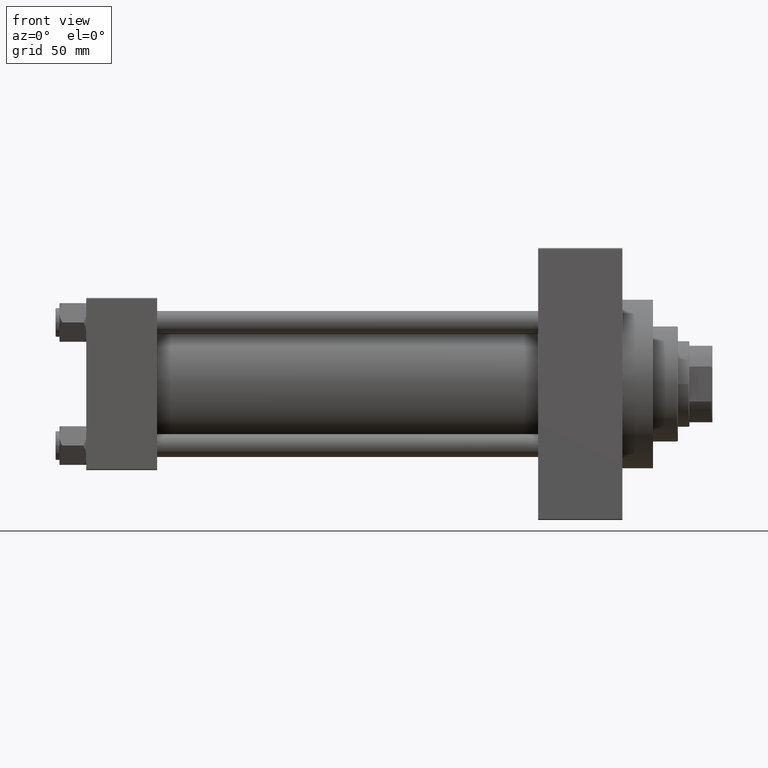
[diagram: clean part render]
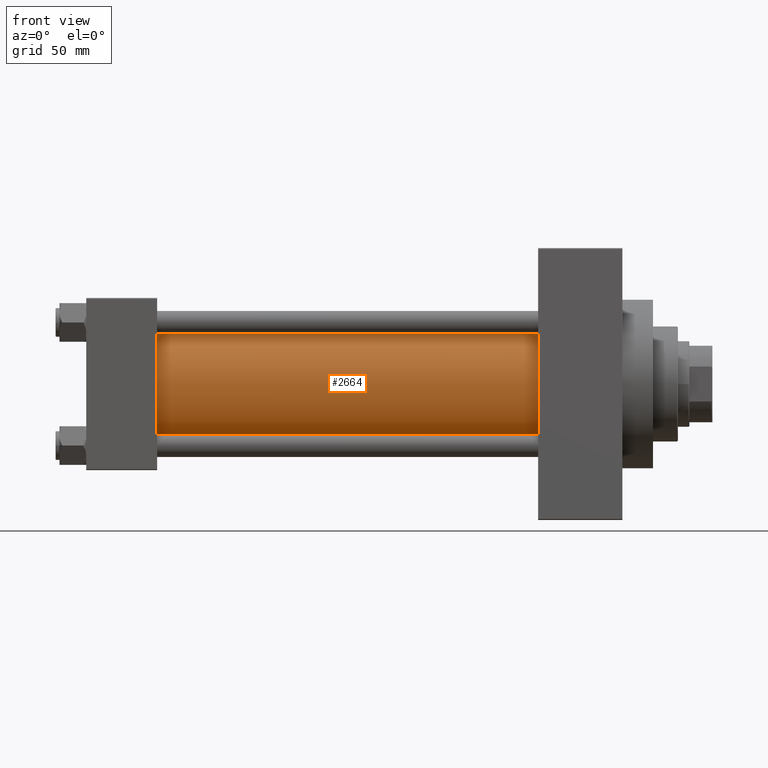
[diagram: same view with one face highlighted and labeled with its STEP entity id]
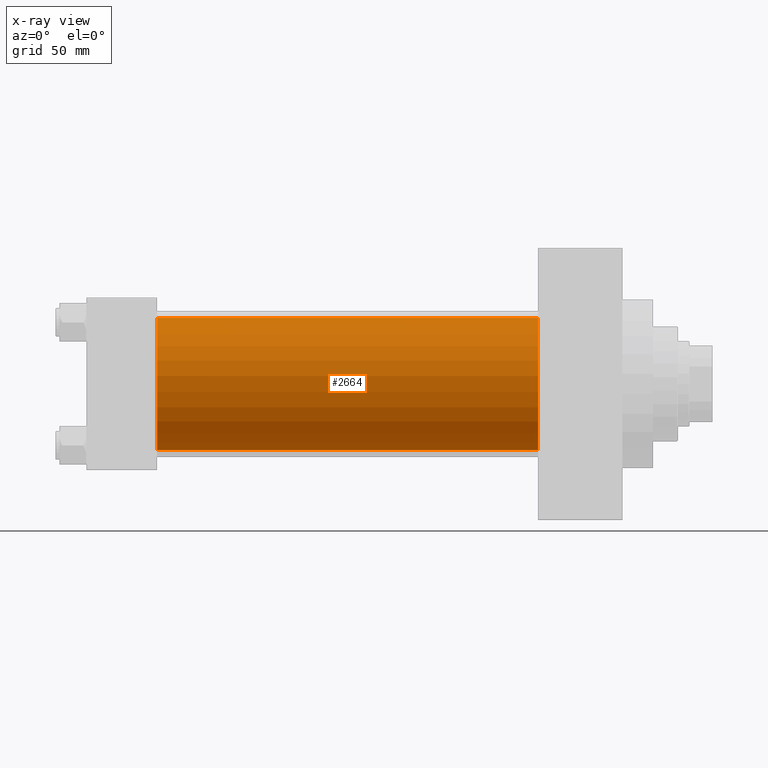
[diagram: x-ray of the same camera — body ghosted, the highlighted face saturated]
A machine part, front view. The second image highlights one B-rep face of the part: STEP entity #2664.
The next image is the same camera in x-ray: the body ghosted, the highlighted face saturated — about 0% of this face is hidden behind the body in this view.
In plain terms, the highlighted cylindrical surface (partial cylindrical patch) has radius 34.5 mm, axis along (-1, -0, -0).
Its self-contained STEP definition (entity closure, byte-faithful):
#1165 = EDGE_CURVE ( 'NONE', #38965, #42127, #3940, .T. ) ;
#2664 = ADVANCED_FACE ( 'NONE', ( #14154 ), #14378, .T. ) ;
#2832 = EDGE_CURVE ( 'NONE', #28145, #10946, #9322, .T. ) ;
#3551 = ORIENTED_EDGE ( 'NONE', *, *, #43971, .F. ) ;
#3641 = DIRECTION ( 'NONE',  ( -1.000000000000000000, -0.000000000000000000, -0.000000000000000000 ) ) ;
#3918 = CARTESIAN_POINT ( 'NONE',  ( 236.0000000000000284, -2.602085213965210642E-15, 34.50000000000000000 ) ) ;
#3940 = CIRCLE ( 'NONE', #31328, 34.50000000000000000 ) ;
#5392 = CARTESIAN_POINT ( 'NONE',  ( 236.0000000000000284, -2.602085213965210642E-15, 34.50000000000000000 ) ) ;
#7035 = AXIS2_PLACEMENT_3D ( 'NONE', #45795, #19596, #20074 ) ;
#8530 = AXIS2_PLACEMENT_3D ( 'NONE', #18175, #3641, #25107 ) ;
#8541 = VECTOR ( 'NONE', #9440, 1000.000000000000000 ) ;
#8794 = CARTESIAN_POINT ( 'NONE',  ( 236.0000000000000284, 1.622946243093158675E-15, -34.50000000000000000 ) ) ;
#9322 = CIRCLE ( 'NONE', #7035, 34.50000000000000000 ) ;
#9440 = DIRECTION ( 'NONE',  ( -1.000000000000000000, -0.000000000000000000, -0.000000000000000000 ) ) ;
#10946 = VERTEX_POINT ( 'NONE', #30024 ) ;
#14154 = FACE_OUTER_BOUND ( 'NONE', #39964, .T. ) ;
#14378 = CYLINDRICAL_SURFACE ( 'NONE', #8530, 34.50000000000000000 ) ;
#18175 = CARTESIAN_POINT ( 'NONE',  ( 236.0000000000000284, -2.602085213965210642E-15, 0.000000000000000000 ) ) ;
#19263 = CARTESIAN_POINT ( 'NONE',  ( 37.00000000000000711, 1.622946243093158675E-15, -34.50000000000000000 ) ) ;
#19596 = DIRECTION ( 'NONE',  ( 1.000000000000000000, 0.000000000000000000, 0.000000000000000000 ) ) ;
#20074 = DIRECTION ( 'NONE',  ( 0.000000000000000000, 0.000000000000000000, -1.000000000000000000 ) ) ;
#25107 = DIRECTION ( 'NONE',  ( 0.000000000000000000, 0.000000000000000000, 1.000000000000000000 ) ) ;
#28016 = EDGE_CURVE ( 'NONE', #28145, #38965, #41858, .T. ) ;
#28145 = VERTEX_POINT ( 'NONE', #3918 ) ;
#30024 = CARTESIAN_POINT ( 'NONE',  ( 236.0000000000000284, 1.622946243093158675E-15, -34.50000000000000000 ) ) ;
#31328 = AXIS2_PLACEMENT_3D ( 'NONE', #37472, #33668, #45110 ) ;
#33306 = VECTOR ( 'NONE', #37862, 1000.000000000000000 ) ;
#33348 = LINE ( 'NONE', #8794, #33306 ) ;
#33668 = DIRECTION ( 'NONE',  ( 1.000000000000000000, -0.000000000000000000, 0.000000000000000000 ) ) ;
#35284 = ORIENTED_EDGE ( 'NONE', *, *, #2832, .F. ) ;
#37472 = CARTESIAN_POINT ( 'NONE',  ( 37.00000000000000711, -2.602085213965210642E-15, 0.000000000000000000 ) ) ;
#37862 = DIRECTION ( 'NONE',  ( -1.000000000000000000, -0.000000000000000000, -0.000000000000000000 ) ) ;
#38342 = ORIENTED_EDGE ( 'NONE', *, *, #28016, .T. ) ;
#38965 = VERTEX_POINT ( 'NONE', #40120 ) ;
#39964 = EDGE_LOOP ( 'NONE', ( #3551, #35284, #38342, #41378 ) ) ;
#40120 = CARTESIAN_POINT ( 'NONE',  ( 37.00000000000000711, -2.602085213965210642E-15, 34.50000000000000000 ) ) ;
#41378 = ORIENTED_EDGE ( 'NONE', *, *, #1165, .T. ) ;
#41858 = LINE ( 'NONE', #5392, #8541 ) ;
#42127 = VERTEX_POINT ( 'NONE', #19263 ) ;
#43971 = EDGE_CURVE ( 'NONE', #10946, #42127, #33348, .T. ) ;
#45110 = DIRECTION ( 'NONE',  ( 0.000000000000000000, 0.000000000000000000, 1.000000000000000000 ) ) ;
#45795 = CARTESIAN_POINT ( 'NONE',  ( 236.0000000000000284, -2.602085213965210642E-15, 0.000000000000000000 ) ) ;